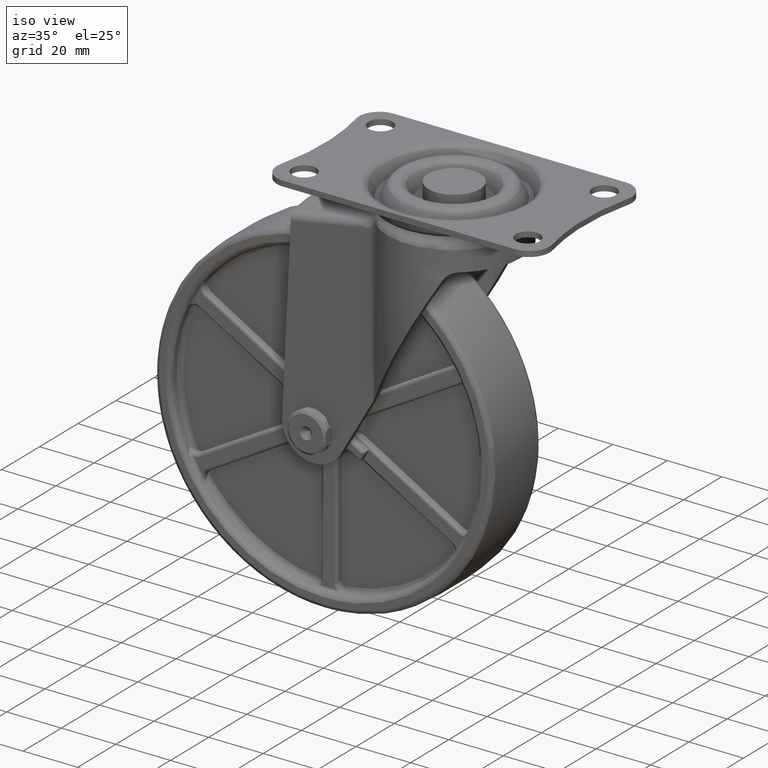
[diagram: clean part render]
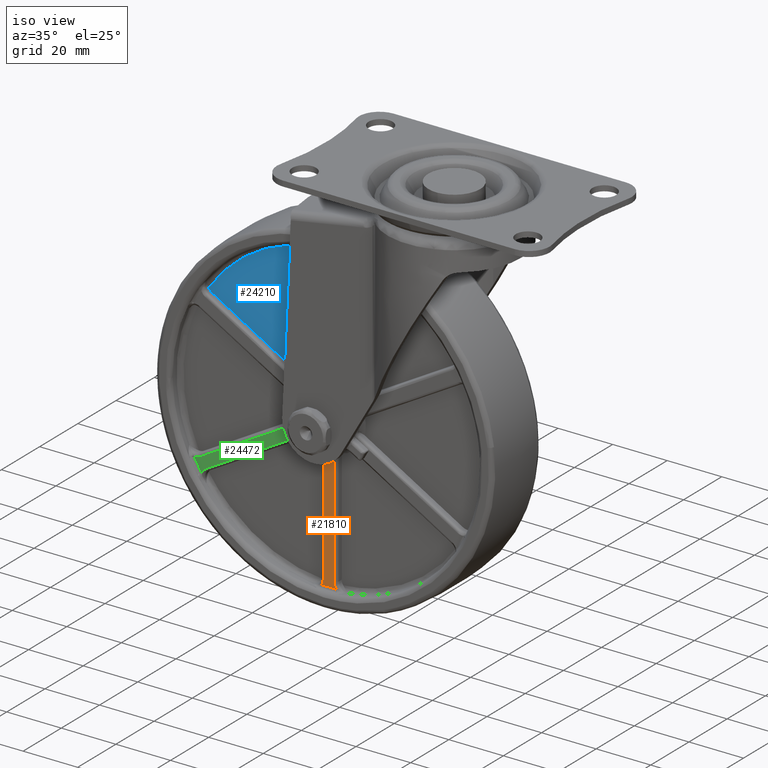
[diagram: same view with three faces highlighted in distinct colors, each labeled with its STEP entity id]
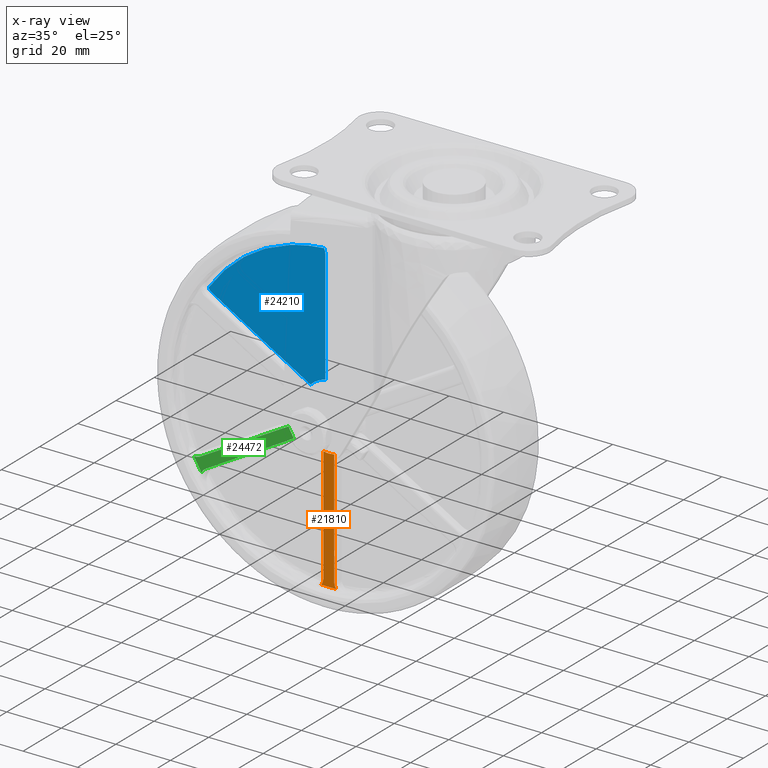
[diagram: x-ray of the same camera — body ghosted, the three highlighted faces saturated]
A machine part, iso view with three faces highlighted in distinct colors.
The next image is the same camera in x-ray (body ghosted, the three faces saturated) — at least one of them is partly hidden behind the body in this view.
Their STEP definitions:

[orange] entity #21810 — the highlighted face is a freeform B-spline surface patch.
#9147=CARTESIAN_POINT('',(-37.0,-10.0,-94.549094076388897));
#9148=VERTEX_POINT('',#9147);
#9211=CARTESIAN_POINT('',(-41.0,-10.0,-94.549094076389011));
#9212=VERTEX_POINT('',#9211);
#9226=CARTESIAN_POINT('',(-36.999999999999993,-10.0,-94.549094076388926));
#9227=CARTESIAN_POINT('',(-38.999999999999993,-10.0,-94.911114706527982));
#9228=CARTESIAN_POINT('',(-40.999999999999979,-10.0,-94.549094076388926));
#9236=(BOUNDED_CURVE()B_SPLINE_CURVE(2,(#9226,#9227,#9228),.UNSPECIFIED.,.F.,.U.)CURVE()GEOMETRIC_REPRESENTATION_ITEM()QUASI_UNIFORM_CURVE()RATIONAL_B_SPLINE_CURVE((1.0,0.984009520121509,1.0))REPRESENTATION_ITEM(''));
#9237=EDGE_CURVE('',#9148,#9212,#9236,.T.);
#17000=CARTESIAN_POINT('',(-41.707469582622252,-10.0,-138.941234806073600));
#17001=VERTEX_POINT('',#17000);
#17090=CARTESIAN_POINT('',(-36.292530417377897,-10.0,-138.941234806073600));
#17091=VERTEX_POINT('',#17090);
#17105=CARTESIAN_POINT('',(-41.707469582622288,-10.0,-138.941234806073710));
#17106=CARTESIAN_POINT('',(-39.000000000000107,-10.0,-139.073453930818490));
#17107=CARTESIAN_POINT('',(-36.292530417377883,-10.0,-138.941234806073710));
#17115=(BOUNDED_CURVE()B_SPLINE_CURVE(2,(#17105,#17106,#17107),.UNSPECIFIED.,.F.,.U.)CURVE()GEOMETRIC_REPRESENTATION_ITEM()QUASI_UNIFORM_CURVE()RATIONAL_B_SPLINE_CURVE((1.0,0.998809702724240,1.0))REPRESENTATION_ITEM(''));
#17116=EDGE_CURVE('',#17001,#17091,#17115,.T.);
#20197=CARTESIAN_POINT('',(-41.0,-10.0,-136.669838000000000));
#20198=VERTEX_POINT('',#20197);
#20199=CARTESIAN_POINT('',(-40.999999999999993,-10.0,-136.669838000000000));
#20200=CARTESIAN_POINT('',(-40.999999999999993,-10.0,-137.915713807750360));
#20201=CARTESIAN_POINT('',(-41.707469582622160,-10.0,-138.941234806073710));
#20209=(BOUNDED_CURVE()B_SPLINE_CURVE(2,(#20199,#20200,#20201),.UNSPECIFIED.,.F.,.U.)CURVE()GEOMETRIC_REPRESENTATION_ITEM()QUASI_UNIFORM_CURVE()RATIONAL_B_SPLINE_CURVE((1.0,0.954759813865367,1.0))REPRESENTATION_ITEM(''));
#20210=EDGE_CURVE('',#20198,#17001,#20209,.T.);
#20242=CARTESIAN_POINT('',(-41.0,-10.0,-94.549094076389011));
#20243=CARTESIAN_POINT('',(-41.0,-10.0,-136.669838000000000));
#20244=QUASI_UNIFORM_CURVE('',1,(#20242,#20243),.UNSPECIFIED.,.F.,.U.);
#20245=EDGE_CURVE('',#9212,#20198,#20244,.T.);
#20279=CARTESIAN_POINT('',(-37.0,-10.0,-136.669838000000000));
#20280=VERTEX_POINT('',#20279);
#20281=CARTESIAN_POINT('',(-37.0,-10.0,-136.669838000000000));
#20282=CARTESIAN_POINT('',(-37.0,-10.0,-94.549094076388897));
#20283=QUASI_UNIFORM_CURVE('',1,(#20281,#20282),.UNSPECIFIED.,.F.,.U.);
#20284=EDGE_CURVE('',#20280,#9148,#20283,.T.);
#20319=CARTESIAN_POINT('',(-36.292530417377883,-10.0,-138.941234806073600));
#20320=CARTESIAN_POINT('',(-37.000000000000007,-9.999999999999998,-137.915713807750250));
#20321=CARTESIAN_POINT('',(-37.000000000000007,-10.0,-136.669838000000000));
#20329=(BOUNDED_CURVE()B_SPLINE_CURVE(2,(#20319,#20320,#20321),.UNSPECIFIED.,.F.,.U.)CURVE()GEOMETRIC_REPRESENTATION_ITEM()QUASI_UNIFORM_CURVE()RATIONAL_B_SPLINE_CURVE((1.0,0.954759813865369,1.0))REPRESENTATION_ITEM(''));
#20330=EDGE_CURVE('',#17091,#20280,#20329,.T.);
#21797=CARTESIAN_POINT('',(-41.977946209429568,-10.0,-141.227996564048510));
#21798=CARTESIAN_POINT('',(-36.022053645330587,-10.0,-141.227996564048510));
#21799=CARTESIAN_POINT('',(-41.977946209429568,-10.0,-92.328408474651084));
#21800=CARTESIAN_POINT('',(-36.022053645330587,-10.0,-92.328408474651084));
#21801=B_SPLINE_SURFACE_WITH_KNOTS('',1,1,((#21797,#21799),(#21798,#21800)),.UNSPECIFIED.,.F.,.F.,.U.,(2,2),(2,2),(0.0,5.955892564098981),(0.0,48.899588089397447),.UNSPECIFIED.);
#21802=ORIENTED_EDGE('',*,*,#20284,.T.);
#21803=ORIENTED_EDGE('',*,*,#9237,.T.);
#21804=ORIENTED_EDGE('',*,*,#20245,.T.);
#21805=ORIENTED_EDGE('',*,*,#20210,.T.);
#21806=ORIENTED_EDGE('',*,*,#17116,.T.);
#21807=ORIENTED_EDGE('',*,*,#20330,.T.);
#21808=EDGE_LOOP('',(#21802,#21803,#21804,#21805,#21806,#21807));
#21809=FACE_OUTER_BOUND('',#21808,.T.);
#21810=ADVANCED_FACE('',(#21809),#21801,.T.);

[blue] entity #24210 — the highlighted face is a freeform B-spline surface patch.
#20793=CARTESIAN_POINT('',(-47.453841374332612,-7.500000000000000,-75.155070791705199));
#20794=VERTEX_POINT('',#20793);
#20806=CARTESIAN_POINT('',(-83.546430423103388,-7.500000000000000,-54.317004788646798));
#20807=VERTEX_POINT('',#20806);
#20808=CARTESIAN_POINT('',(-83.546430423103388,-7.500000000000000,-54.317004788646798));
#20809=CARTESIAN_POINT('',(-47.453841374332612,-7.500000000000000,-75.155070791705199));
#20810=QUASI_UNIFORM_CURVE('',1,(#20808,#20809),.UNSPECIFIED.,.F.,.U.);
#20811=EDGE_CURVE('',#20807,#20794,#20810,.T.);
#20900=CARTESIAN_POINT('',(-84.766609997989789,-7.500000000000000,-52.984085911529199));
#20901=VERTEX_POINT('',#20900);
#20935=CARTESIAN_POINT('',(-84.766609997989860,-7.500000000000000,-52.984085911529228));
#20936=CARTESIAN_POINT('',(-84.367017501177230,-7.500000000000000,-53.843238618227346));
#20937=CARTESIAN_POINT('',(-83.546430423103388,-7.500000000000000,-54.317004788646813));
#20945=(BOUNDED_CURVE()B_SPLINE_CURVE(2,(#20935,#20936,#20937),.UNSPECIFIED.,.F.,.U.)CURVE()GEOMETRIC_REPRESENTATION_ITEM()QUASI_UNIFORM_CURVE()RATIONAL_B_SPLINE_CURVE((1.0,0.953567702427362,1.0))REPRESENTATION_ITEM(''));
#20946=EDGE_CURVE('',#20901,#20807,#20945,.T.);
#20970=CARTESIAN_POINT('',(-42.0,-7.500000000000000,-72.006294006116804));
#20971=VERTEX_POINT('',#20970);
#20987=CARTESIAN_POINT('',(-42.0,-7.500000000000000,-30.330162000000001));
#20988=VERTEX_POINT('',#20987);
#20994=CARTESIAN_POINT('',(-42.0,-7.500000000000000,-72.006294006116804));
#20995=CARTESIAN_POINT('',(-42.0,-7.500000000000000,-30.330162000000001));
#20996=QUASI_UNIFORM_CURVE('',1,(#20994,#20995),.UNSPECIFIED.,.F.,.U.);
#20997=EDGE_CURVE('',#20971,#20988,#20996,.T.);
#21056=CARTESIAN_POINT('',(-42.544251821324501,-7.500000000000000,-28.606996052410651));
#21057=VERTEX_POINT('',#21056);
#21092=CARTESIAN_POINT('',(-41.999999999999993,-7.500000000000000,-30.330162000000001));
#21093=CARTESIAN_POINT('',(-42.0,-7.500000000000000,-29.382629659161072));
#21094=CARTESIAN_POINT('',(-42.544251821324437,-7.500000000000000,-28.606996052410611));
#21102=(BOUNDED_CURVE()B_SPLINE_CURVE(2,(#21092,#21093,#21094),.UNSPECIFIED.,.F.,.U.)CURVE()GEOMETRIC_REPRESENTATION_ITEM()QUASI_UNIFORM_CURVE()RATIONAL_B_SPLINE_CURVE((1.0,0.953567702427360,1.0))REPRESENTATION_ITEM(''));
#21103=EDGE_CURVE('',#20988,#21057,#21102,.T.);
#23996=CARTESIAN_POINT('',(-84.766609997989761,-7.500000000000000,-52.984085911529263));
#23997=CARTESIAN_POINT('',(-69.680903676458300,-7.500000000000001,-30.359116010247828));
#23998=CARTESIAN_POINT('',(-42.544251821324544,-7.500000000000000,-28.606996052410629));
#24006=(BOUNDED_CURVE()B_SPLINE_CURVE(2,(#23996,#23997,#23998),.UNSPECIFIED.,.F.,.U.)CURVE()GEOMETRIC_REPRESENTATION_ITEM()QUASI_UNIFORM_CURVE()RATIONAL_B_SPLINE_CURVE((1.0,0.896442060182990,1.0))REPRESENTATION_ITEM(''));
#24007=EDGE_CURVE('',#20901,#21057,#24006,.T.);
#24185=CARTESIAN_POINT('',(-86.902801281574710,-7.500000000000000,-77.480143539033591));
#24186=CARTESIAN_POINT('',(-86.902801281574710,-7.500000000000000,-26.281918727187840));
#24187=CARTESIAN_POINT('',(-39.863806804598617,-7.500000000000000,-77.480143539033591));
#24188=CARTESIAN_POINT('',(-39.863806804598617,-7.500000000000000,-26.281918727187840));
#24189=B_SPLINE_SURFACE_WITH_KNOTS('',1,1,((#24185,#24187),(#24186,#24188)),.UNSPECIFIED.,.F.,.F.,.U.,(2,2),(2,2),(0.0,51.198224811845748),(0.0,47.038994476976093),.UNSPECIFIED.);
#24190=ORIENTED_EDGE('',*,*,#24007,.F.);
#24191=ORIENTED_EDGE('',*,*,#20946,.T.);
#24192=ORIENTED_EDGE('',*,*,#20811,.T.);
#24193=CARTESIAN_POINT('',(-47.453841374332548,-7.500000000000000,-75.155070791705256));
#24194=CARTESIAN_POINT('',(-45.159735972511477,-7.500000000000000,-72.831024334400709));
#24195=CARTESIAN_POINT('',(-42.000000000000007,-7.500000000000000,-72.006294006116761));
#24203=(BOUNDED_CURVE()B_SPLINE_CURVE(2,(#24193,#24194,#24195),.UNSPECIFIED.,.F.,.U.)CURVE()GEOMETRIC_REPRESENTATION_ITEM()QUASI_UNIFORM_CURVE()RATIONAL_B_SPLINE_CURVE((1.0,0.964227549218728,1.0))REPRESENTATION_ITEM(''));
#24204=EDGE_CURVE('',#20794,#20971,#24203,.T.);
#24205=ORIENTED_EDGE('',*,*,#24204,.T.);
#24206=ORIENTED_EDGE('',*,*,#20997,.T.);
#24207=ORIENTED_EDGE('',*,*,#21103,.T.);
#24208=EDGE_LOOP('',(#24190,#24191,#24192,#24205,#24206,#24207));
#24209=FACE_OUTER_BOUND('',#24208,.T.);
#24210=ADVANCED_FACE('',(#24209),#24189,.F.);

[green] entity #24472 — the highlighted face is a freeform B-spline surface patch.
#15670=CARTESIAN_POINT('',(-88.367252550548983,-10.0,-108.875879964512390));
#15671=VERTEX_POINT('',#15670);
#15760=CARTESIAN_POINT('',(-85.659782967926901,-10.0,-113.565354841561200));
#15761=VERTEX_POINT('',#15760);
#15775=CARTESIAN_POINT('',(-88.367252550548969,-10.0,-108.875879964512390));
#15776=CARTESIAN_POINT('',(-87.128022880132974,-10.0,-111.286726965409140));
#15777=CARTESIAN_POINT('',(-85.659782967926901,-10.0,-113.565354841561200));
#15785=(BOUNDED_CURVE()B_SPLINE_CURVE(2,(#15775,#15776,#15777),.UNSPECIFIED.,.F.,.U.)CURVE()GEOMETRIC_REPRESENTATION_ITEM()QUASI_UNIFORM_CURVE()RATIONAL_B_SPLINE_CURVE((1.0,0.998809702724240,1.0))REPRESENTATION_ITEM(''));
#15786=EDGE_CURVE('',#15671,#15761,#15785,.T.);
#17234=CARTESIAN_POINT('',(-51.360389137038602,-10.0,-92.945675072316305));
#17235=VERTEX_POINT('',#17234);
#17242=CARTESIAN_POINT('',(-52.017175400090899,-10.0,-92.803394251737899));
#17243=VERTEX_POINT('',#17242);
#17249=CARTESIAN_POINT('',(-51.360389137038602,-10.0,-92.945675072316305));
#17250=CARTESIAN_POINT('',(-51.753341268870919,-10.0,-93.172547172671031));
#17251=CARTESIAN_POINT('',(-52.017175400090942,-10.0,-92.803394251737927));
#17259=(BOUNDED_CURVE()B_SPLINE_CURVE(2,(#17249,#17250,#17251),.UNSPECIFIED.,.F.,.U.)CURVE()GEOMETRIC_REPRESENTATION_ITEM()QUASI_UNIFORM_CURVE()RATIONAL_B_SPLINE_CURVE((1.0,0.740531651572513,1.0))REPRESENTATION_ITEM(''));
#17260=EDGE_CURVE('',#17235,#17243,#17259,.T.);
#17281=CARTESIAN_POINT('',(-53.565562898933599,-10.0,-90.121508697963989));
#17282=VERTEX_POINT('',#17281);
#17288=CARTESIAN_POINT('',(-52.017175400090863,-10.0,-92.803394251737885));
#17289=CARTESIAN_POINT('',(-52.921749789127560,-9.999999999999998,-91.537726779640678));
#17290=CARTESIAN_POINT('',(-53.565562898933493,-10.0,-90.121508697963947));
#17298=(BOUNDED_CURVE()B_SPLINE_CURVE(2,(#17288,#17289,#17290),.UNSPECIFIED.,.F.,.U.)CURVE()GEOMETRIC_REPRESENTATION_ITEM()QUASI_UNIFORM_CURVE()RATIONAL_B_SPLINE_CURVE((1.0,0.995306360867000,1.0))REPRESENTATION_ITEM(''));
#17299=EDGE_CURVE('',#17243,#17282,#17298,.T.);
#17320=CARTESIAN_POINT('',(-53.360389195180801,-10.0,-89.481573928264410));
#17321=VERTEX_POINT('',#17320);
#17327=CARTESIAN_POINT('',(-53.565562898933607,-10.0,-90.121508697963989));
#17328=CARTESIAN_POINT('',(-53.753341632414255,-10.0,-89.708445289252225));
#17329=CARTESIAN_POINT('',(-53.360389195180773,-10.0,-89.481573928264467));
#17337=(BOUNDED_CURVE()B_SPLINE_CURVE(2,(#17327,#17328,#17329),.UNSPECIFIED.,.F.,.U.)CURVE()GEOMETRIC_REPRESENTATION_ITEM()QUASI_UNIFORM_CURVE()RATIONAL_B_SPLINE_CURVE((1.0,0.740531729109527,1.0))REPRESENTATION_ITEM(''));
#17338=EDGE_CURVE('',#17282,#17321,#17337,.T.);
#20387=CARTESIAN_POINT('',(-86.046430423103203,-10.0,-108.352868192431200));
#20388=VERTEX_POINT('',#20387);
#20389=CARTESIAN_POINT('',(-86.046430423103246,-10.0,-108.352868192431100));
#20390=CARTESIAN_POINT('',(-87.125390522575515,-10.0,-108.975806096306300));
#20391=CARTESIAN_POINT('',(-88.367252550548983,-10.0,-108.875879964512390));
#20399=(BOUNDED_CURVE()B_SPLINE_CURVE(2,(#20389,#20390,#20391),.UNSPECIFIED.,.F.,.U.)CURVE()GEOMETRIC_REPRESENTATION_ITEM()QUASI_UNIFORM_CURVE()RATIONAL_B_SPLINE_CURVE((1.0,0.954759813865366,1.0))REPRESENTATION_ITEM(''));
#20400=EDGE_CURVE('',#20388,#15671,#20399,.T.);
#20440=CARTESIAN_POINT('',(-53.360389195180801,-10.0,-89.481573928264410));
#20441=CARTESIAN_POINT('',(-86.046430423103203,-10.0,-108.352868192431200));
#20442=QUASI_UNIFORM_CURVE('',1,(#20440,#20441),.UNSPECIFIED.,.F.,.U.);
#20443=EDGE_CURVE('',#17321,#20388,#20442,.T.);
#20471=CARTESIAN_POINT('',(-84.046430423103288,-10.0,-111.816969807569000));
#20472=VERTEX_POINT('',#20471);
#20473=CARTESIAN_POINT('',(-84.046430423103288,-10.0,-111.816969807569000));
#20474=CARTESIAN_POINT('',(-51.360389137038602,-10.0,-92.945675072316305));
#20475=QUASI_UNIFORM_CURVE('',1,(#20473,#20474),.UNSPECIFIED.,.F.,.U.);
#20476=EDGE_CURVE('',#20472,#17235,#20475,.T.);
#20511=CARTESIAN_POINT('',(-85.659782967926844,-10.0,-113.565354841561200));
#20512=CARTESIAN_POINT('',(-85.125390522575572,-10.0,-112.439907711444090));
#20513=CARTESIAN_POINT('',(-84.046430423103359,-10.0,-111.816969807568900));
#20521=(BOUNDED_CURVE()B_SPLINE_CURVE(2,(#20511,#20512,#20513),.UNSPECIFIED.,.F.,.U.)CURVE()GEOMETRIC_REPRESENTATION_ITEM()QUASI_UNIFORM_CURVE()RATIONAL_B_SPLINE_CURVE((1.0,0.954759813865371,1.0))REPRESENTATION_ITEM(''));
#20522=EDGE_CURVE('',#15761,#20472,#20521,.T.);
#24457=CARTESIAN_POINT('',(-90.215748995446347,-10.0,-114.768338208969300));
#24458=CARTESIAN_POINT('',(-49.511897986015512,-10.0,-114.768338208969300));
#24459=CARTESIAN_POINT('',(-90.215748995446347,-10.0,-88.278590345530503));
#24460=CARTESIAN_POINT('',(-49.511897986015512,-10.0,-88.278590345530503));
#24461=B_SPLINE_SURFACE_WITH_KNOTS('',1,1,((#24457,#24459),(#24458,#24460)),.UNSPECIFIED.,.F.,.F.,.U.,(2,2),(2,2),(0.0,40.703851009430842),(0.0,26.489747863438819),.UNSPECIFIED.);
#24462=ORIENTED_EDGE('',*,*,#20400,.T.);
#24463=ORIENTED_EDGE('',*,*,#15786,.T.);
#24464=ORIENTED_EDGE('',*,*,#20522,.T.);
#24465=ORIENTED_EDGE('',*,*,#20476,.T.);
#24466=ORIENTED_EDGE('',*,*,#17260,.T.);
#24467=ORIENTED_EDGE('',*,*,#17299,.T.);
#24468=ORIENTED_EDGE('',*,*,#17338,.T.);
#24469=ORIENTED_EDGE('',*,*,#20443,.T.);
#24470=EDGE_LOOP('',(#24462,#24463,#24464,#24465,#24466,#24467,#24468,#24469));
#24471=FACE_OUTER_BOUND('',#24470,.T.);
#24472=ADVANCED_FACE('',(#24471),#24461,.T.);